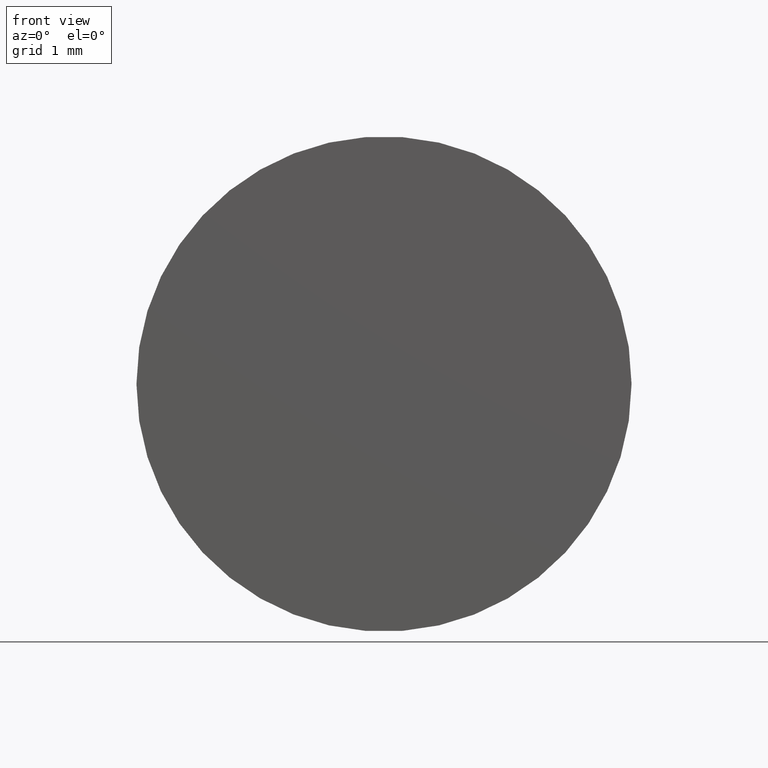
[diagram: clean part render]
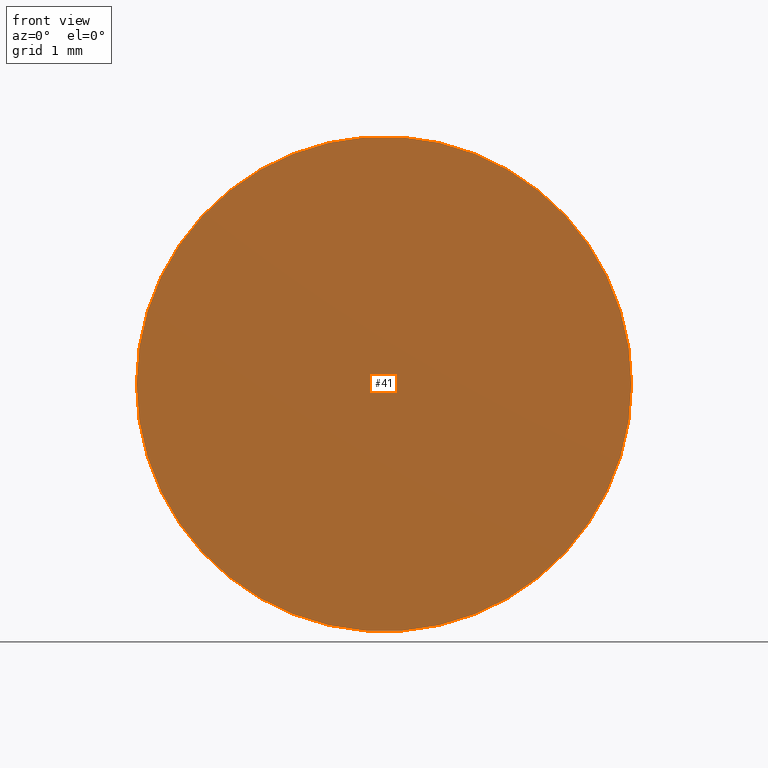
[diagram: same view with one face highlighted and labeled with its STEP entity id]
A machine part, front view. The second image highlights one B-rep face of the part: STEP entity #41.
In plain terms, the highlighted planar face has unit normal (-0, -1, 0).
Its self-contained STEP definition (entity closure, byte-faithful):
#12 = AXIS2_PLACEMENT_3D ( 'NONE', #15, #102, #187 ) ;
#15 = CARTESIAN_POINT ( 'NONE',  ( -1.925929944387235853E-30, -2.602085213965210642E-15, 0.000000000000000000 ) ) ;
#28 = EDGE_CURVE ( 'NONE', #169, #122, #67, .T. ) ;
#32 = PLANE ( 'NONE',  #183 ) ;
#36 = CARTESIAN_POINT ( 'NONE',  ( -2.999999999999999112, -4.330473254753795076E-16, 0.000000000000000000 ) ) ;
#41 = ADVANCED_FACE ( 'NONE', ( #141 ), #32, .T. ) ;
#44 = DIRECTION ( 'NONE',  ( 7.230126294966106081E-16, 1.000000000000000000, -0.000000000000000000 ) ) ;
#59 = ORIENTED_EDGE ( 'NONE', *, *, #28, .F. ) ;
#67 = CIRCLE ( 'NONE', #12, 2.999999999999999112 ) ;
#73 = DIRECTION ( 'NONE',  ( -1.000000000000000000, 7.230126294966107067E-16, 0.000000000000000000 ) ) ;
#74 = EDGE_CURVE ( 'NONE', #122, #169, #91, .T. ) ;
#86 = DIRECTION ( 'NONE',  ( -7.230126294966106081E-16, -1.000000000000000000, 0.000000000000000000 ) ) ;
#89 = DIRECTION ( 'NONE',  ( 1.000000000000000000, -7.230126294966106081E-16, 0.000000000000000000 ) ) ;
#91 = CIRCLE ( 'NONE', #116, 2.999999999999999112 ) ;
#102 = DIRECTION ( 'NONE',  ( 7.230126294966106081E-16, 1.000000000000000000, -0.000000000000000000 ) ) ;
#103 = EDGE_LOOP ( 'NONE', ( #59, #188 ) ) ;
#116 = AXIS2_PLACEMENT_3D ( 'NONE', #156, #44, #73 ) ;
#122 = VERTEX_POINT ( 'NONE', #124 ) ;
#124 = CARTESIAN_POINT ( 'NONE',  ( 2.999999999999999112, -4.771123102455041973E-15, 3.673940397442059375E-16 ) ) ;
#139 = CARTESIAN_POINT ( 'NONE',  ( -9.169361589858246961E-31, -1.268215964117018585E-15, 0.000000000000000000 ) ) ;
#141 = FACE_OUTER_BOUND ( 'NONE', #103, .T. ) ;
#156 = CARTESIAN_POINT ( 'NONE',  ( -1.925929944387235853E-30, -2.602085213965210642E-15, 0.000000000000000000 ) ) ;
#169 = VERTEX_POINT ( 'NONE', #36 ) ;
#183 = AXIS2_PLACEMENT_3D ( 'NONE', #139, #86, #89 ) ;
#187 = DIRECTION ( 'NONE',  ( -1.000000000000000000, 7.230126294966107067E-16, 0.000000000000000000 ) ) ;
#188 = ORIENTED_EDGE ( 'NONE', *, *, #74, .F. ) ;